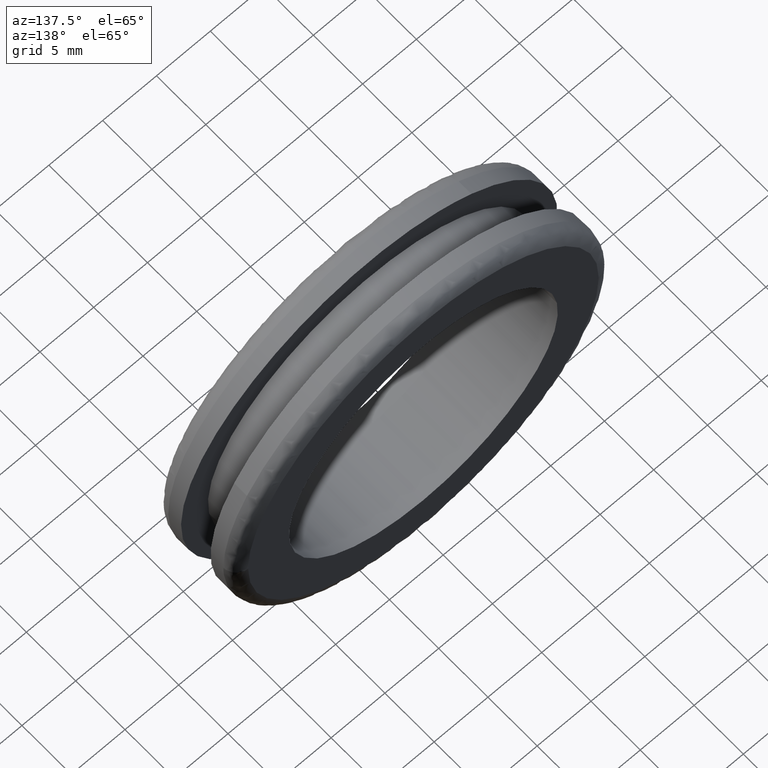
[diagram: clean part render]
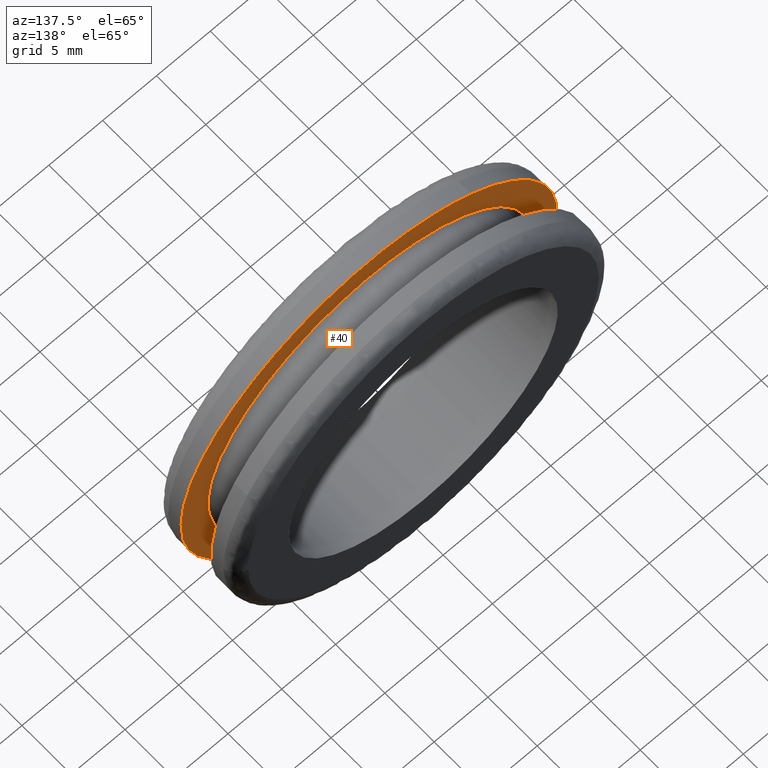
[diagram: same view with one face highlighted and labeled with its STEP entity id]
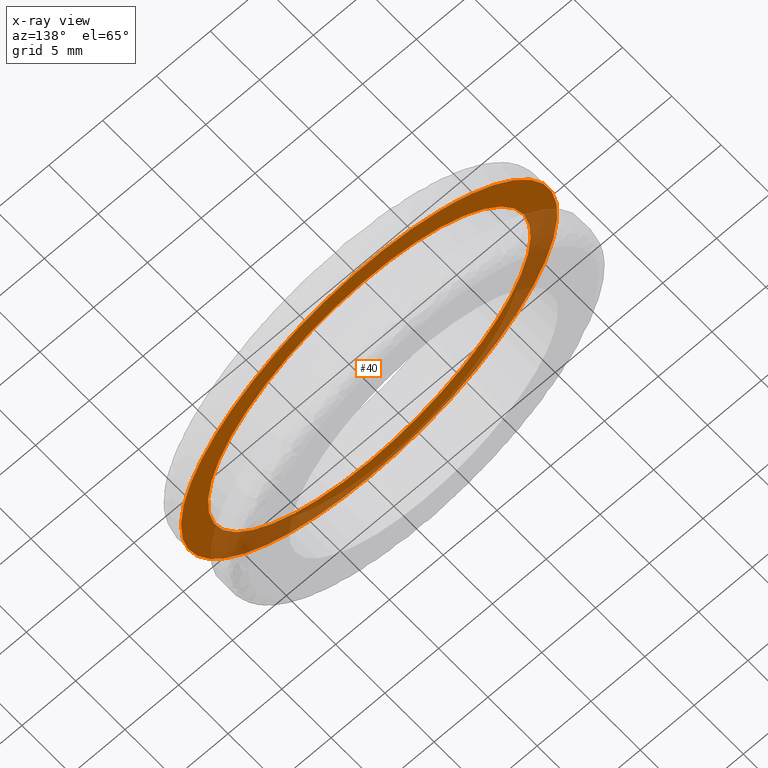
[diagram: x-ray of the same camera — body ghosted, the highlighted face saturated]
A machine part, auxiliary view. The second image highlights one B-rep face of the part: STEP entity #40.
The next image is the same camera in x-ray: the body ghosted, the highlighted face saturated — about 31% of this face is hidden behind the body in this view.
In plain terms, the highlighted planar face has unit normal (0, -1, 0).
Its self-contained STEP definition (entity closure, byte-faithful):
#40=ADVANCED_FACE('',(#57,#58),#56,.F.);
#56=PLANE('',#223);
#57=FACE_OUTER_BOUND('',#224,.T.);
#58=FACE_BOUND('',#225,.T.);
#220=CARTESIAN_POINT('',(-3.63730669589E+001,2.50000000000E+000,4.02500000000E+001));
#221=DIRECTION('',(0.00000000000E+000,-1.00000000000E+000,0.00000000000E+000));
#222=DIRECTION('',(0.00000000000E+000,0.00000000000E+000,-1.00000000000E+000));
#223=AXIS2_PLACEMENT_3D('',#220,#221,#222);
#224=EDGE_LOOP('',(#388,#389,#390));
#225=EDGE_LOOP('',(#391,#392,#393));
#388=ORIENTED_EDGE('',*,*,#486,.F.);
#389=ORIENTED_EDGE('',*,*,#487,.F.);
#390=ORIENTED_EDGE('',*,*,#488,.F.);
#391=ORIENTED_EDGE('',*,*,#489,.T.);
#392=ORIENTED_EDGE('',*,*,#490,.T.);
#393=ORIENTED_EDGE('',*,*,#491,.T.);
#486=EDGE_CURVE('',#535,#536,#537,.T.);
#487=EDGE_CURVE('',#543,#535,#544,.T.);
#488=EDGE_CURVE('',#536,#543,#550,.T.);
#489=EDGE_CURVE('',#556,#557,#558,.T.);
#490=EDGE_CURVE('',#557,#564,#565,.T.);
#491=EDGE_CURVE('',#564,#556,#571,.T.);
#535=VERTEX_POINT('',#866);
#536=VERTEX_POINT('',#867);
#537=CIRCLE('',#871,1.75000000000E+001);
#543=VERTEX_POINT('',#872);
#544=(BOUNDED_CURVE() B_SPLINE_CURVE(2,(#873,#874,#875,#876,#877),.UNSPECIFIED.,.F.,.F.) B_SPLINE_CURVE_WITH_KNOTS((3,2,3),(0.00000000000E+000,5.00000000000E-001,1.00000000000E+000),.UNSPECIFIED.) CURVE() GEOMETRIC_REPRESENTATION_ITEM() RATIONAL_B_SPLINE_CURVE((1.00000000000E+000,7.07160008278E-001,1.00000000000E+000,7.07160008278E-001,1.00000000000E+000)) REPRESENTATION_ITEM('') );
#550=(BOUNDED_CURVE() B_SPLINE_CURVE(2,(#878,#879,#880),.UNSPECIFIED.,.F.,.F.) B_SPLINE_CURVE_WITH_KNOTS((3,3),(0.00000000000E+000,9.99467849730E-001),.UNSPECIFIED.) CURVE() GEOMETRIC_REPRESENTATION_ITEM() RATIONAL_B_SPLINE_CURVE((1.00000000000E+000,9.59099708657E-001,1.00000000000E+000)) REPRESENTATION_ITEM('') );
#556=VERTEX_POINT('',#881);
#557=VERTEX_POINT('',#882);
#558=CIRCLE('',#886,1.50000000000E+001);
#564=VERTEX_POINT('',#887);
#565=CIRCLE('',#891,1.50000000000E+001);
#571=CIRCLE('',#895,1.50000000000E+001);
#866=CARTESIAN_POINT('',(-9.49775507428E+000,2.50000000000E+000,1.46983893182E+001));
#867=CARTESIAN_POINT('',(0.00000000000E+000,2.50000000000E+000,-1.75000000000E+001));
#868=CARTESIAN_POINT('',(1.54543045028E-013,2.50000000000E+000,2.08499884025E-013));
#869=DIRECTION('',(9.36100004287E-017,-1.00000000000E+000,9.07020236042E-017));
#870=DIRECTION('',(-9.32587340685E-015,-9.07020236042E-017,-1.00000000000E+000));
#871=AXIS2_PLACEMENT_3D('',#868,#869,#870);
#872=CARTESIAN_POINT('',(9.49775507676E+000,2.50000000000E+000,-1.46983893166E+001));
#873=CARTESIAN_POINT('',(9.49775507676E+000,2.50000000000E+000,-1.46983893166E+001));
#874=CARTESIAN_POINT('',(2.41954969414E+001,2.50000000000E+000,-5.19477881519E+000));
#875=CARTESIAN_POINT('',(1.46969592207E+001,2.50000000000E+000,9.49996787701E+000));
#876=CARTESIAN_POINT('',(5.19842150009E+000,2.50000000000E+000,2.41947145692E+001));
#877=CARTESIAN_POINT('',(-9.49775507428E+000,2.50000000000E+000,1.46983893182E+001));
#878=CARTESIAN_POINT('',(-8.65973959207E-015,2.50000000000E+000,-1.75000000000E+001));
#879=CARTESIAN_POINT('',(5.16494570445E+000,2.50000000000E+000,-1.75000000000E+001));
#880=CARTESIAN_POINT('',(9.49775507676E+000,2.50000000000E+000,-1.46983893166E+001));
#881=CARTESIAN_POINT('',(2.88657986403E-015,2.50000000000E+000,-1.50000000000E+001));
#882=CARTESIAN_POINT('',(1.48948366656E+001,2.50000000000E+000,-1.77308790135E+000));
#883=CARTESIAN_POINT('',(3.28714833131E-012,2.50000000000E+000,7.24753590475E-012));
#884=DIRECTION('',(-2.94798637559E-014,-1.00000000000E+000,-1.97596490863E-013));
#885=DIRECTION('',(-2.18561280185E-013,1.97596490863E-013,-1.00000000000E+000));
#886=AXIS2_PLACEMENT_3D('',#883,#884,#885);
#887=CARTESIAN_POINT('',(-1.48951429350E+001,2.50000000000E+000,1.77051318750E+000));
#888=CARTESIAN_POINT('',(3.28714833131E-012,2.50000000000E+000,7.24753590475E-012));
#889=DIRECTION('',(-2.94798637559E-014,-1.00000000000E+000,-1.97596490863E-013));
#890=DIRECTION('',(-2.18561280185E-013,1.97596490863E-013,-1.00000000000E+000));
#891=AXIS2_PLACEMENT_3D('',#888,#889,#890);
#892=CARTESIAN_POINT('',(3.28714833131E-012,2.50000000000E+000,7.24753590475E-012));
#893=DIRECTION('',(-2.94798637559E-014,-1.00000000000E+000,-1.97596490863E-013));
#894=DIRECTION('',(-2.18561280185E-013,1.97596490863E-013,-1.00000000000E+000));
#895=AXIS2_PLACEMENT_3D('',#892,#893,#894);